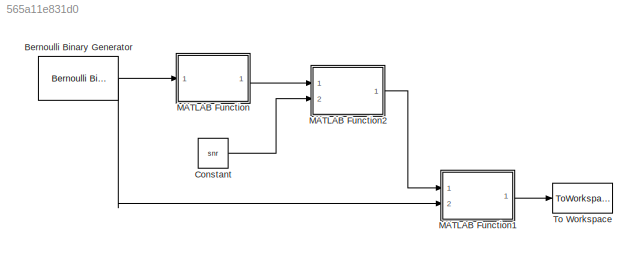
MODEL slx_565a11e831d0
KIND model
CONFIG AbsTol = auto
CONFIG EnableMultiTasking = off
CONFIG FixedStep = auto
CONFIG MaxStep = auto
CONFIG MinStep = auto
CONFIG RelTol = 1e-3
CONFIG SampleTimeConstraint = Unconstrained
CONFIG Solver = VariableStepAuto
CONFIG SolverName = VariableStepAuto
CONFIG StartTime = 0.0
CONFIG StopTime = 0
BLOCK [Reference] Bernoulli Binary Generator  REF=commrandsrc3/Bernoulli Binary
Generator
  Ports = [0, 1]
  SourceBlock = commrandsrc3/Bernoulli Binary\nGenerator
  SourceProductBaseCode = CM
  SourceProductName = Communications System Toolbox
  SourceType = Bernoulli Binary Generator
BLOCK [Constant] Constant
  Value = snr
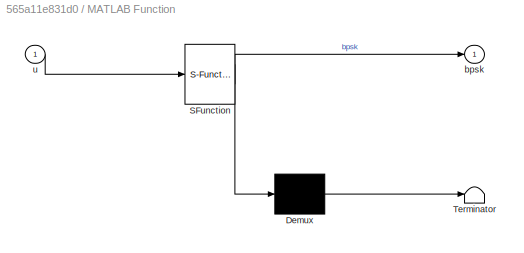
BLOCK [SubSystem] MATLAB Function
  ErrorFcn = Stateflow.Translate.translate
  PermitHierarchicalResolution = ExplicitOnly
  Ports = [1, 1]
  RequestExecContextInheritance = off
  SFBlockType = MATLAB Function
  TreatAsAtomicUnit = on
BLOCK [Demux] MATLAB Function/ Demux 
  Outputs = 1
  Ports = [1, 1]
BLOCK [S-Function] MATLAB Function/ SFunction 
  EnableBusSupport = on
  FunctionName = sf_sfun
  PortCounts = [1 2]
  Ports = [1, 2]
  SFcnIsStateOwnerBlock = off
  SFunctionDeploymentMode = off
  Tag = Stateflow S-Function bpsk_sim 2
BLOCK [Terminator] MATLAB Function/ Terminator 
BLOCK [Outport] MATLAB Function/bpsk
  IconDisplay = Port number
BLOCK [Inport] MATLAB Function/u
  IconDisplay = Port number
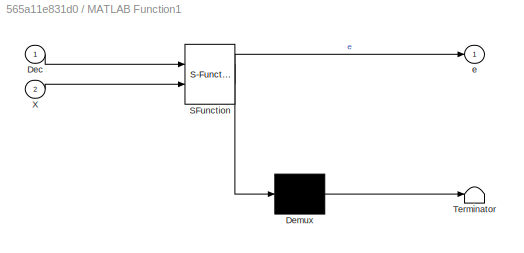
BLOCK [SubSystem] MATLAB Function1
  ErrorFcn = Stateflow.Translate.translate
  PermitHierarchicalResolution = ExplicitOnly
  Ports = [2, 1]
  RequestExecContextInheritance = off
  SFBlockType = MATLAB Function
  TreatAsAtomicUnit = on
BLOCK [Demux] MATLAB Function1/ Demux 
  Outputs = 1
  Ports = [1, 1]
BLOCK [S-Function] MATLAB Function1/ SFunction 
  EnableBusSupport = on
  FunctionName = sf_sfun
  PortCounts = [2 2]
  Ports = [2, 2]
  SFcnIsStateOwnerBlock = off
  SFunctionDeploymentMode = off
  Tag = Stateflow S-Function bpsk_sim 1
BLOCK [Terminator] MATLAB Function1/ Terminator 
BLOCK [Inport] MATLAB Function1/Dec
  IconDisplay = Port number
BLOCK [Inport] MATLAB Function1/X
  IconDisplay = Port number
  Port = 2
BLOCK [Outport] MATLAB Function1/e
  IconDisplay = Port number
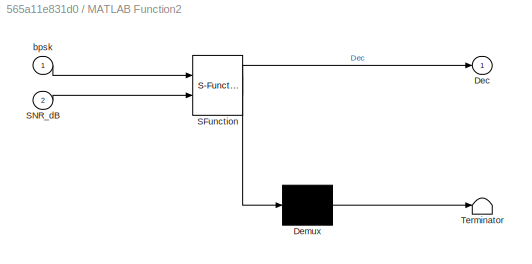
BLOCK [SubSystem] MATLAB Function2
  ErrorFcn = Stateflow.Translate.translate
  PermitHierarchicalResolution = ExplicitOnly
  Ports = [2, 1]
  RequestExecContextInheritance = off
  SFBlockType = MATLAB Function
  TreatAsAtomicUnit = on
BLOCK [Demux] MATLAB Function2/ Demux 
  Outputs = 1
  Ports = [1, 1]
BLOCK [S-Function] MATLAB Function2/ SFunction 
  EnableBusSupport = on
  FunctionName = sf_sfun
  PortCounts = [2 2]
  Ports = [2, 2]
  SFcnIsStateOwnerBlock = off
  SFunctionDeploymentMode = off
  Tag = Stateflow S-Function bpsk_sim 3
BLOCK [Terminator] MATLAB Function2/ Terminator 
BLOCK [Outport] MATLAB Function2/Dec
  IconDisplay = Port number
BLOCK [Inport] MATLAB Function2/SNR_dB
  IconDisplay = Port number
  Port = 2
BLOCK [Inport] MATLAB Function2/bpsk
  IconDisplay = Port number
BLOCK [ToWorkspace] To Workspace
  FixptAsFi = on
  MaxDataPoints = inf
  Ports = [1]
  SampleTime = -1
  Save2DSignal = 2-D array (concatenate along first dimension)
  VariableName = simout
NET Bernoulli Binary Generator:1 -> MATLAB Function1:2, MATLAB Function:1
LINE Constant:1 -> MATLAB Function2:2
LINE MATLAB Function1:1 -> To Workspace:1
LINE MATLAB Function2:1 -> MATLAB Function1:1
LINE MATLAB Function:1 -> MATLAB Function2:1
note: NET lines group one-source signal fan-out (src -> all destinations, sorted); 1:1 wires keep LINE
CHART MATLAB Function1 states=1 transitions=1
  STATE_LABEL 'eML_blk_kernel()'
  STATE_LABEL 'SCRIPT:\nfunction e = fcn(Dec,X)\n\n    N = length(Dec);\n    X_rcvd = zeros(1,N);\n    X = transpose(X);\n    for j = 1:N\n        if Dec(j) > 0\n            X_rcvd(j) = 1;\n        else\n            X_rcvd(j) = 0;\n        end\n    end\n    e = sum(abs(X-X_rcvd))/N;\n    \nend\n'
CHART MATLAB Function states=1 transitions=1
  STATE_LABEL 'eML_blk_kernel()'
  STATE_LABEL 'SCRIPT:\nfunction bpsk = fcn(u)\n\n    X = transpose(u);\n    N = length(u);\n    bpsk = zeros(1,N);\n    for i = 1:N\n        if X(i) == 0\n            bpsk(i) = -1;\n        else\n            bpsk(i) = 1;\n        end\n    end\n\nend\n'
CHART MATLAB Function2 states=1 transitions=1
  STATE_LABEL 'eML_blk_kernel()'
  STATE_LABEL 'SCRIPT:\nfunction Dec = fcn(bpsk,SNR_dB)\n\nN = length(bpsk);\ny1 = complex(randn(1,N),randn(1,N));\ny2 = complex(randn(1,N),randn(1,N));\nDec = complex(randn(1,N),randn(1,N));\n\n    h1 = (1/sqrt(2)).*complex(randn(1,N),randn(1,N));\n    h2 = (1/sqrt(2)).*complex(randn(1,N),randn(1,N));\n    n1 = complex(randn(1,N),randn(1,N));\n    n2 = complex(randn(1,N),randn(1,N));\n    normsq_h = h1.*conj(h1) + h2.*conj...<+182ch>'
